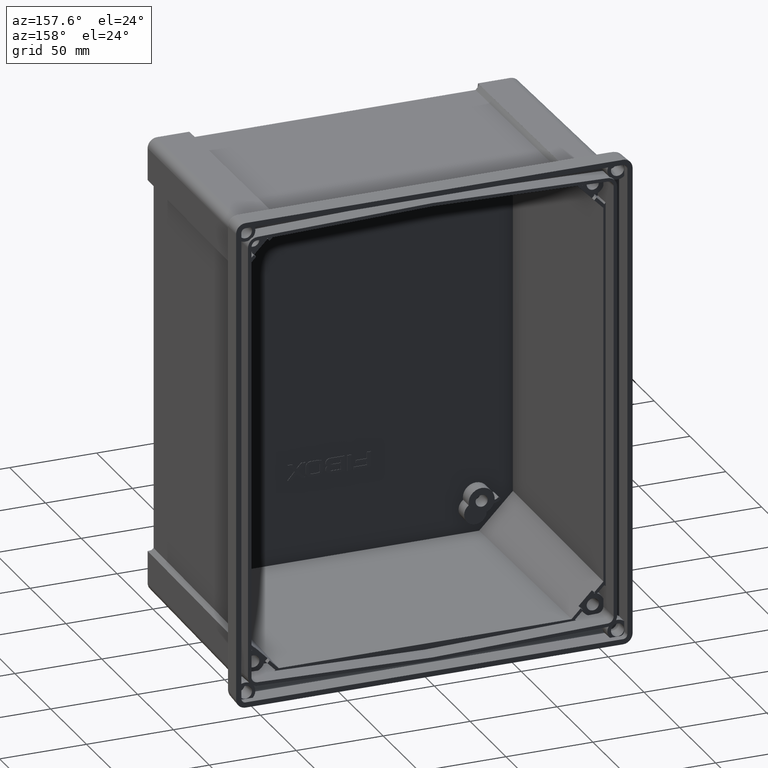
[diagram: clean part render]
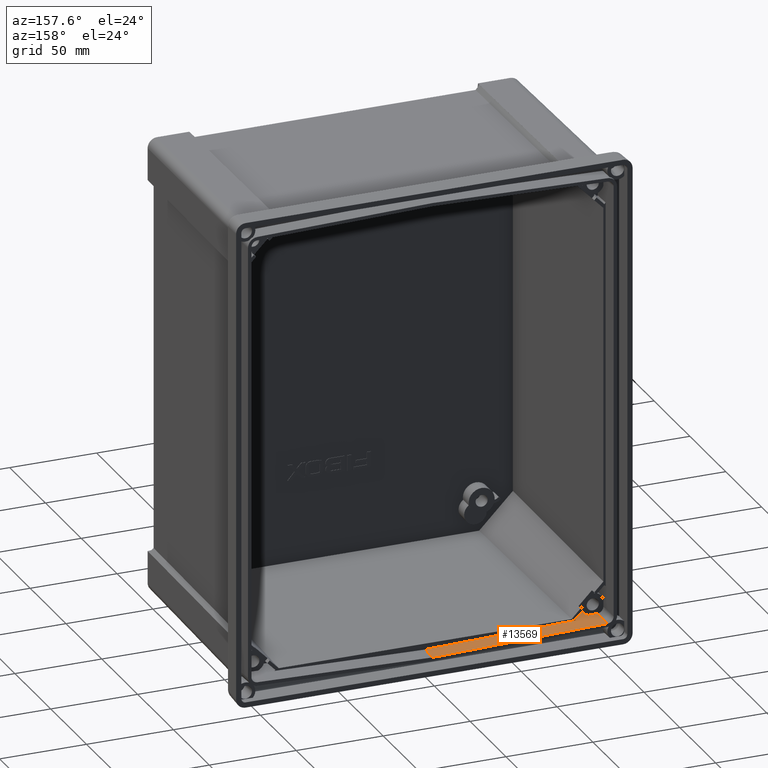
[diagram: same view with one face highlighted and labeled with its STEP entity id]
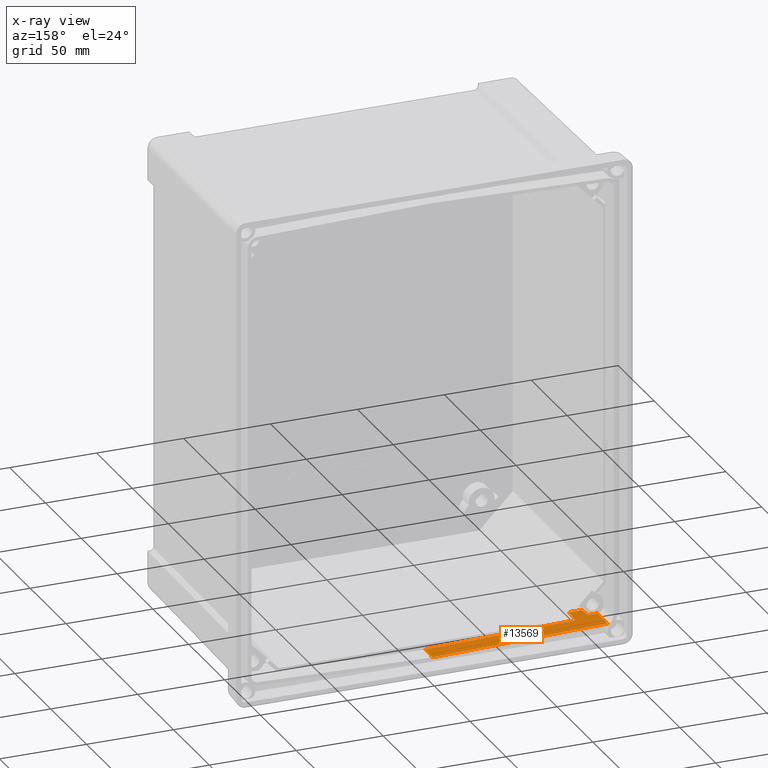
[diagram: x-ray of the same camera — body ghosted, the highlighted face saturated]
A machine part, auxiliary view. The second image highlights one B-rep face of the part: STEP entity #13569.
The next image is the same camera in x-ray: the body ghosted, the highlighted face saturated — about 0% of this face is hidden behind the body in this view.
In plain terms, the highlighted planar face has unit normal (0.0262, 0.0349, 0.999).
Its self-contained STEP definition (entity closure, byte-faithful):
#255 = EDGE_CURVE ( 'NONE', #8093, #10207, #5651, .T. ) ;
#283 = DIRECTION ( 'NONE',  ( -0.9996573249755573700, 0.0000000000000000000, 0.02617694830786865600 ) ) ;
#314 = EDGE_CURVE ( 'NONE', #10411, #3592, #8077, .T. ) ;
#511 = ORIENTED_EDGE ( 'NONE', *, *, #255, .T. ) ;
#1183 = CARTESIAN_POINT ( 'NONE',  ( -94.87818586973178000, -15.79291351792850400, -128.2953558896519200 ) ) ;
#1212 = ORIENTED_EDGE ( 'NONE', *, *, #5013, .F. ) ;
#1276 = LINE ( 'NONE', #11166, #11503 ) ;
#1479 = CARTESIAN_POINT ( 'NONE',  ( 97.28732064600451700, -12.79291351792850400, -133.4321849917839100 ) ) ;
#1496 = DIRECTION ( 'NONE',  ( -0.0009135623211520024900, 0.9993908270190956500, -0.03488753751661548300 ) ) ;
#2349 = VECTOR ( 'NONE', #7680, 1000.000000000000100 ) ;
#2468 = EDGE_CURVE ( 'NONE', #11551, #5586, #14374, .T. ) ;
#2492 = EDGE_CURVE ( 'NONE', #3592, #12900, #3107, .T. ) ;
#3107 = LINE ( 'NONE', #1479, #2349 ) ;
#3515 = CARTESIAN_POINT ( 'NONE',  ( -94.87818586973178000, -15.79291351792850400, -128.2953558896519200 ) ) ;
#3592 = VERTEX_POINT ( 'NONE', #12535 ) ;
#4117 = ORIENTED_EDGE ( 'NONE', *, *, #2492, .F. ) ;
#4232 = EDGE_CURVE ( 'NONE', #10117, #8670, #12842, .T. ) ;
#4520 = ORIENTED_EDGE ( 'NONE', *, *, #314, .F. ) ;
#4581 = DIRECTION ( 'NONE',  ( 0.003659257267767883800, -0.9993870572952563400, 0.03481550727730746400 ) ) ;
#4857 = CARTESIAN_POINT ( 'NONE',  ( -100.3790396424341900, -15.79291351792850400, -128.1513109641963400 ) ) ;
#4865 = VECTOR ( 'NONE', #15506, 1000.000000000000000 ) ;
#4901 = DIRECTION ( 'NONE',  ( 0.03487934512674303200, -0.9988137613916394700, 0.03397795370846538200 ) ) ;
#4990 = VECTOR ( 'NONE', #283, 1000.000000000000100 ) ;
#5013 = EDGE_CURVE ( 'NONE', #5586, #10207, #1276, .T. ) ;
#5038 = DIRECTION ( 'NONE',  ( 0.02616100201824144900, 0.03489949670250105200, 0.9990483607430191700 ) ) ;
#5586 = VERTEX_POINT ( 'NONE', #4857 ) ;
#5651 = LINE ( 'NONE', #7173, #15013 ) ;
#5848 = LINE ( 'NONE', #11399, #8442 ) ;
#5946 = ORIENTED_EDGE ( 'NONE', *, *, #4232, .T. ) ;
#6060 = DIRECTION ( 'NONE',  ( 0.0000000000000000000, -0.9993904096895385200, 0.03491144540944078600 ) ) ;
#6921 = ORIENTED_EDGE ( 'NONE', *, *, #11213, .F. ) ;
#7108 = CARTESIAN_POINT ( 'NONE',  ( -94.22402692991205700, -20.59264232381585900, -128.1448179655645600 ) ) ;
#7173 = CARTESIAN_POINT ( 'NONE',  ( -96.13489403176318100, -134.3843584140914200, -124.1197237092846100 ) ) ;
#7178 = EDGE_CURVE ( 'NONE', #10117, #11551, #13436, .T. ) ;
#7208 = CARTESIAN_POINT ( 'NONE',  ( -86.62324455936104100, -23.00000000000000400, -128.2597558566282600 ) ) ;
#7515 = AXIS2_PLACEMENT_3D ( 'NONE', #13355, #5038, #6060 ) ;
#7628 = CARTESIAN_POINT ( 'NONE',  ( -99.45715315974962300, -15.79291351792850400, -128.1754514113276300 ) ) ;
#7680 = DIRECTION ( 'NONE',  ( -0.9996573249755572600, 0.0000000000000000000, 0.02617694830787331600 ) ) ;
#7713 = EDGE_LOOP ( 'NONE', ( #8712, #11854, #5946, #14230, #4117, #4520, #6921, #511, #1212 ) ) ;
#8077 = LINE ( 'NONE', #10763, #4865 ) ;
#8093 = VERTEX_POINT ( 'NONE', #13227 ) ;
#8442 = VECTOR ( 'NONE', #11191, 1000.000000000000100 ) ;
#8670 = VERTEX_POINT ( 'NONE', #7208 ) ;
#8712 = ORIENTED_EDGE ( 'NONE', *, *, #2468, .F. ) ;
#8805 = LINE ( 'NONE', #13143, #13872 ) ;
#10117 = VERTEX_POINT ( 'NONE', #10431 ) ;
#10207 = VERTEX_POINT ( 'NONE', #13534 ) ;
#10411 = VERTEX_POINT ( 'NONE', #14103 ) ;
#10431 = CARTESIAN_POINT ( 'NONE',  ( -93.95143904429814100, -23.00000000000000000, -128.0678603306019500 ) ) ;
#10592 = CARTESIAN_POINT ( 'NONE',  ( -94.52166425399794000, -18.18872925819711700, -128.2209993282104700 ) ) ;
#10763 = CARTESIAN_POINT ( 'NONE',  ( 1.387778780781445700E-014, -3.095135712345440400, -131.2233967950036500 ) ) ;
#10964 = VECTOR ( 'NONE', #15541, 1000.000000000000100 ) ;
#11166 = CARTESIAN_POINT ( 'NONE',  ( -100.3817819999677700, -12.79291351792850400, -128.2560373732449900 ) ) ;
#11191 = DIRECTION ( 'NONE',  ( 0.9996573249755572600, 0.0000000000000000000, -0.02617694830787313200 ) ) ;
#11213 = EDGE_CURVE ( 'NONE', #8093, #10411, #5848, .T. ) ;
#11399 = CARTESIAN_POINT ( 'NONE',  ( -104.1296983738547900, -2.500000000000000000, -128.5174544015081000 ) ) ;
#11503 = VECTOR ( 'NONE', #1496, 1000.000000000000200 ) ;
#11551 = VERTEX_POINT ( 'NONE', #1183 ) ;
#11854 = ORIENTED_EDGE ( 'NONE', *, *, #7178, .F. ) ;
#12126 = PLANE ( 'NONE',  #7515 ) ;
#12535 = CARTESIAN_POINT ( 'NONE',  ( 1.173386399799888300E-014, -12.79291351792850400, -130.8846268436713300 ) ) ;
#12842 = LINE ( 'NONE', #14290, #10964 ) ;
#12900 = VERTEX_POINT ( 'NONE', #14964 ) ;
#13143 = CARTESIAN_POINT ( 'NONE',  ( -86.69664986141776800, -2.952131417889984900, -128.9581606532682900 ) ) ;
#13227 = CARTESIAN_POINT ( 'NONE',  ( -100.7403973115087300, -2.500000000000000000, -128.6062063733010600 ) ) ;
#13355 = CARTESIAN_POINT ( 'NONE',  ( -104.1292413142658500, -3.000000000000000000, -128.5000000000000000 ) ) ;
#13436 = B_SPLINE_CURVE_WITH_KNOTS ( 'NONE', 3,
 ( #14154, #7108, #10592, #3515 ),
 .UNSPECIFIED., .F., .F.,
 ( 4, 4 ),
 ( 2.013173519823810100E-007, 0.007269844731779968400 ),
 .UNSPECIFIED. ) ;
#13491 = EDGE_CURVE ( 'NONE', #12900, #8670, #8805, .T. ) ;
#13534 = CARTESIAN_POINT ( 'NONE',  ( -100.3815987166643000, -12.79291351792850200, -128.2560421579196400 ) ) ;
#13569 = ADVANCED_FACE ( 'NONE', ( #15352 ), #12126, .T. ) ;
#13872 = VECTOR ( 'NONE', #4581, 1000.000000000000200 ) ;
#14103 = CARTESIAN_POINT ( 'NONE',  ( 1.484508348765982600E-014, -2.500000000000000000, -131.2441865161489700 ) ) ;
#14154 = CARTESIAN_POINT ( 'NONE',  ( -93.95143904429814100, -23.00000000000000000, -128.0678603306019500 ) ) ;
#14230 = ORIENTED_EDGE ( 'NONE', *, *, #13491, .F. ) ;
#14290 = CARTESIAN_POINT ( 'NONE',  ( -104.1109589307087200, -23.00000000000000000, -127.8018239396758100 ) ) ;
#14374 = LINE ( 'NONE', #7628, #4990 ) ;
#14964 = CARTESIAN_POINT ( 'NONE',  ( -86.66061782242222500, -12.79291351792849900, -128.6153387022360400 ) ) ;
#15013 = VECTOR ( 'NONE', #4901, 1000.000000000000100 ) ;
#15352 = FACE_OUTER_BOUND ( 'NONE', #7713, .T. ) ;
#15506 = DIRECTION ( 'NONE',  ( 0.0000000000000000000, -0.9993904096895385200, 0.03491144540944078600 ) ) ;
#15541 = DIRECTION ( 'NONE',  ( 0.9996573249755572600, -0.0000000000000000000, -0.02617694830787313200 ) ) ;